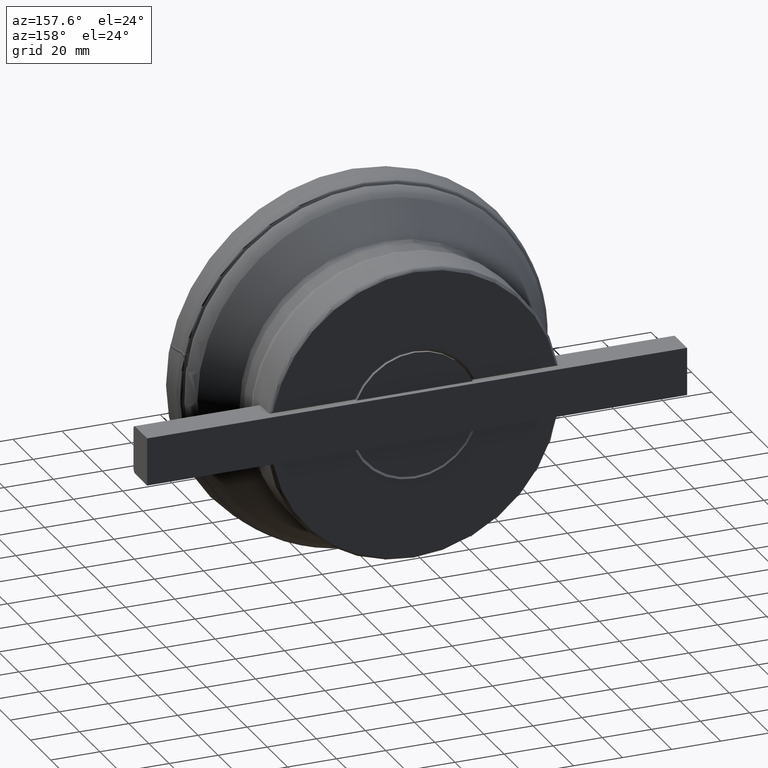
[diagram: clean part render]
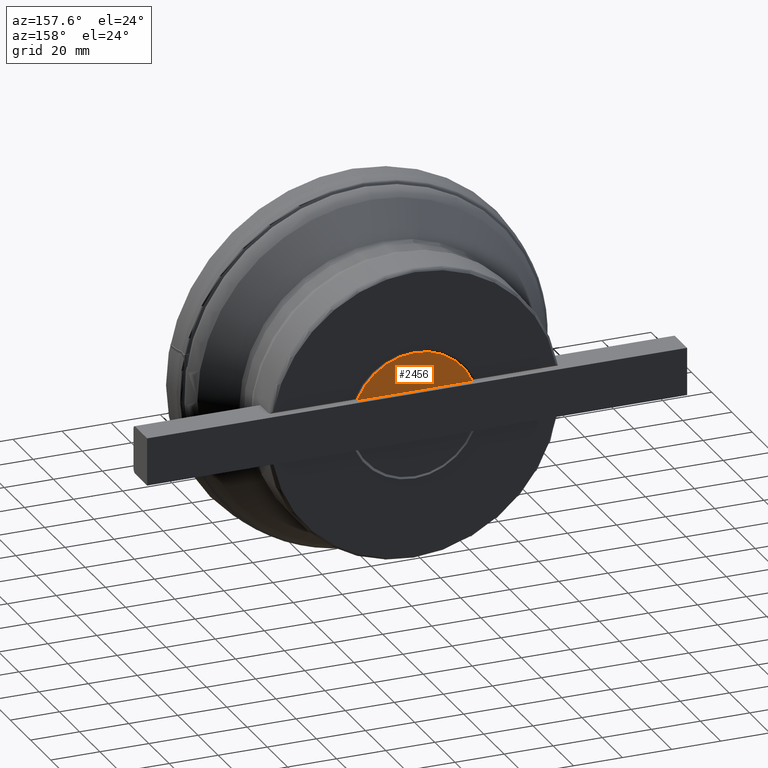
[diagram: same view with one face highlighted and labeled with its STEP entity id]
A machine part, auxiliary view. The second image highlights one B-rep face of the part: STEP entity #2456.
In plain terms, the highlighted planar face has unit normal (0, 1, 0).
Its self-contained STEP definition (entity closure, byte-faithful):
#593=PLANE('',#7828);
#1012=FACE_OUTER_BOUND('',#3230,.T.);
#1826=LINE('',#19222,#1983);
#1983=VECTOR('',#8972,1.);
#2456=ADVANCED_FACE('',(#1012),#593,.T.);
#3230=EDGE_LOOP('',(#5259,#5260));
#5259=ORIENTED_EDGE('',*,*,#7027,.F.);
#5260=ORIENTED_EDGE('',*,*,#7028,.T.);
#5993=VERTEX_POINT('',#19220);
#5994=VERTEX_POINT('',#19221);
#7027=EDGE_CURVE('',#5993,#5994,#7338,.T.);
#7028=EDGE_CURVE('',#5993,#5994,#1826,.T.);
#7338=CIRCLE('',#7827,25.5047436862767);
#7827=AXIS2_PLACEMENT_3D('',#19219,#8970,#8971);
#7828=AXIS2_PLACEMENT_3D('',#19223,#8973,#8974);
#8970=DIRECTION('',(-1.,0.,0.));
#8971=DIRECTION('',(0.,0.,1.));
#8972=DIRECTION('',(0.,-1.,0.));
#8973=DIRECTION('',(1.,0.,0.));
#8974=DIRECTION('',(0.,0.,-1.));
#19219=CARTESIAN_POINT('',(63.2,0.,0.));
#19220=CARTESIAN_POINT('',(63.2,23.5778778837849,-9.725));
#19221=CARTESIAN_POINT('',(63.2,-23.5778778837849,-9.725));
#19222=CARTESIAN_POINT('',(63.2,-25.5047436862767,-9.725));
#19223=CARTESIAN_POINT('',(63.2,-25.5047436862767,0.));